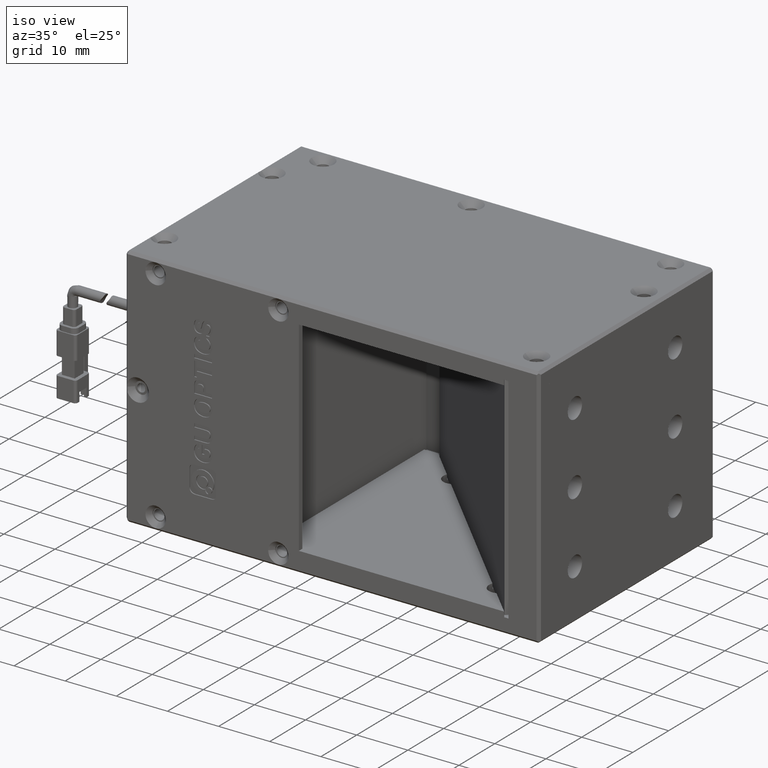
[diagram: clean part render]
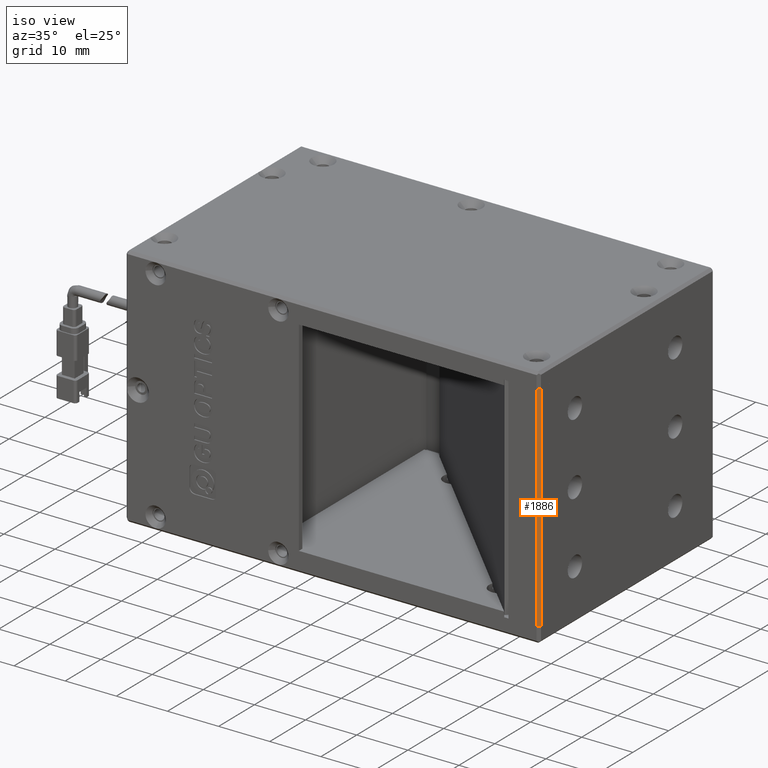
[diagram: same view with one face highlighted and labeled with its STEP entity id]
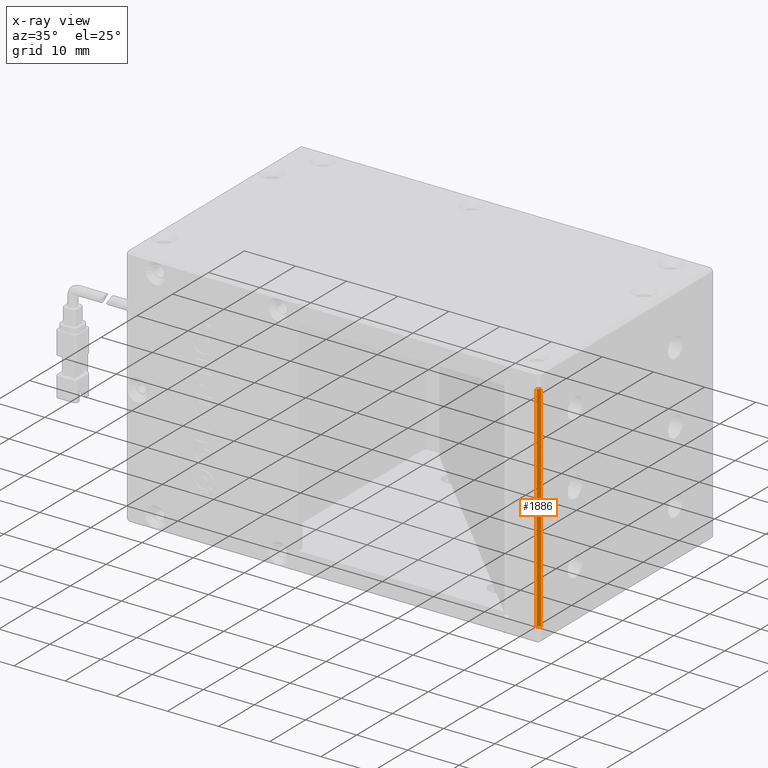
[diagram: x-ray of the same camera — body ghosted, the highlighted face saturated]
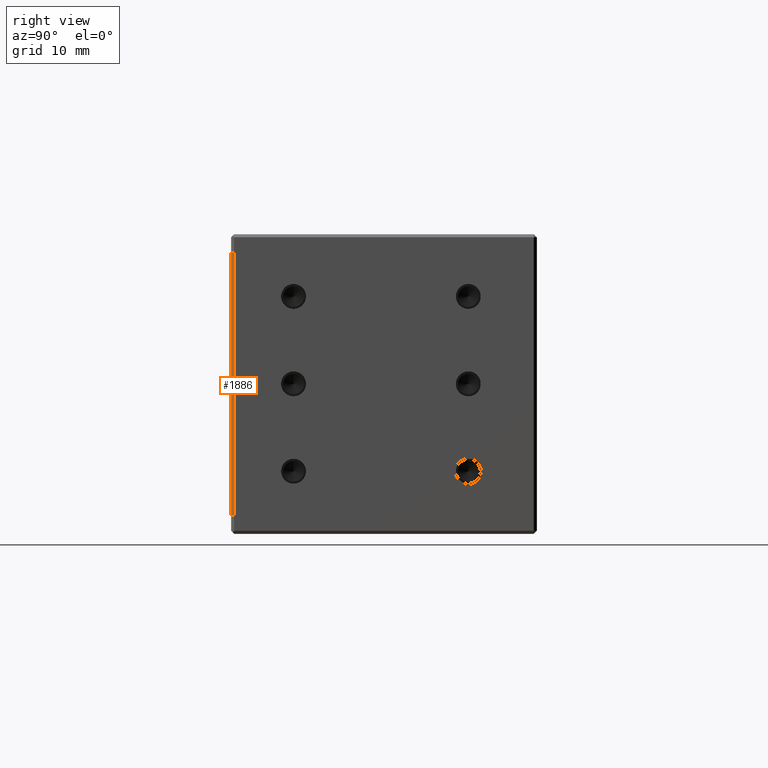
[diagram: same view with one face highlighted and labeled with its STEP entity id]
A machine part, iso view. The second image highlights one B-rep face of the part: STEP entity #1886.
The next image is the same camera in x-ray: the body ghosted, the highlighted face saturated — about 0% of this face is hidden behind the body in this view.
A second angle (right view) of the same face is appended — the face is thin or edge-on in the first view.
In plain terms, the highlighted planar face has unit normal (-0.7071, 0.7071, 0).
Its self-contained STEP definition (entity closure, byte-faithful):
#798 = ORIENTED_EDGE ( 'NONE', *, *, #1821, .T. ) ;
#947 = VECTOR ( 'NONE', #6198, 1000.000000000000000 ) ;
#1317 = CARTESIAN_POINT ( 'NONE',  ( 36.51096255720000300, -7.700787729297999800, -37.84000000000000300 ) ) ;
#1821 = EDGE_CURVE ( 'NONE', #18586, #13865, #2969, .T. ) ;
#1886 = ADVANCED_FACE ( 'NONE', ( #18025 ), #5518, .F. ) ;
#2287 = DIRECTION ( 'NONE',  ( -0.7071067811877178600, -0.7071067811853772900, 0.0000000000000000000 ) ) ;
#2969 = LINE ( 'NONE', #16755, #20239 ) ;
#3275 = DIRECTION ( 'NONE',  ( 0.0000000000000000000, 0.0000000000000000000, 1.000000000000000000 ) ) ;
#3577 = DIRECTION ( 'NONE',  ( -0.7071067811877184100, -0.7071067811853767300, 0.0000000000000000000 ) ) ;
#3954 = CARTESIAN_POINT ( 'NONE',  ( 35.95909811851405600, -8.252652167982113000, -16.00000000000249800 ) ) ;
#4636 = VERTEX_POINT ( 'NONE', #17955 ) ;
#4941 = VECTOR ( 'NONE', #2287, 1000.000000000000000 ) ;
#5518 = PLANE ( 'NONE',  #14404 ) ;
#6198 = DIRECTION ( 'NONE',  ( 0.0000000000000000000, 0.0000000000000000000, 1.000000000000000000 ) ) ;
#6313 = EDGE_CURVE ( 'NONE', #18586, #4636, #10933, .T. ) ;
#8957 = CARTESIAN_POINT ( 'NONE',  ( 36.20909811851500100, -8.002652167982001100, -37.00000000000009900 ) ) ;
#10814 = CARTESIAN_POINT ( 'NONE',  ( 36.20909811851500100, -8.002652167982001100, 4.999999999995094600 ) ) ;
#10933 = LINE ( 'NONE', #8957, #4941 ) ;
#11007 = ORIENTED_EDGE ( 'NONE', *, *, #27355, .F. ) ;
#11108 = EDGE_LOOP ( 'NONE', ( #19782, #798, #11007, #21936 ) ) ;
#12909 = LINE ( 'NONE', #3954, #947 ) ;
#13107 = DIRECTION ( 'NONE',  ( 0.7071067811877178600, 0.7071067811853772900, -0.0000000000000000000 ) ) ;
#13504 = VECTOR ( 'NONE', #13107, 1000.000000000000000 ) ;
#13865 = VERTEX_POINT ( 'NONE', #20807 ) ;
#14404 = AXIS2_PLACEMENT_3D ( 'NONE', #1317, #17056, #3577 ) ;
#16723 = CARTESIAN_POINT ( 'NONE',  ( 35.95909811851852600, -8.252652167982008200, 4.999999999995046600 ) ) ;
#16755 = CARTESIAN_POINT ( 'NONE',  ( 36.45909811851999600, -7.752652167981965500, -16.00000000000249800 ) ) ;
#17056 = DIRECTION ( 'NONE',  ( -0.7071067811853767300, 0.7071067811877184100, 0.0000000000000000000 ) ) ;
#17955 = CARTESIAN_POINT ( 'NONE',  ( 35.95909811851852600, -8.252652167982008200, -37.00000000000005000 ) ) ;
#18025 = FACE_OUTER_BOUND ( 'NONE', #11108, .T. ) ;
#18586 = VERTEX_POINT ( 'NONE', #27326 ) ;
#19468 = LINE ( 'NONE', #10814, #13504 ) ;
#19782 = ORIENTED_EDGE ( 'NONE', *, *, #6313, .F. ) ;
#20239 = VECTOR ( 'NONE', #3275, 1000.000000000000000 ) ;
#20807 = CARTESIAN_POINT ( 'NONE',  ( 36.45909811851896600, -7.752652167981947800, 4.999999999995046600 ) ) ;
#21936 = ORIENTED_EDGE ( 'NONE', *, *, #28828, .F. ) ;
#24289 = VERTEX_POINT ( 'NONE', #16723 ) ;
#27326 = CARTESIAN_POINT ( 'NONE',  ( 36.45909811851896600, -7.752652167981947800, -37.00000000000005000 ) ) ;
#27355 = EDGE_CURVE ( 'NONE', #24289, #13865, #19468, .T. ) ;
#28828 = EDGE_CURVE ( 'NONE', #4636, #24289, #12909, .T. ) ;